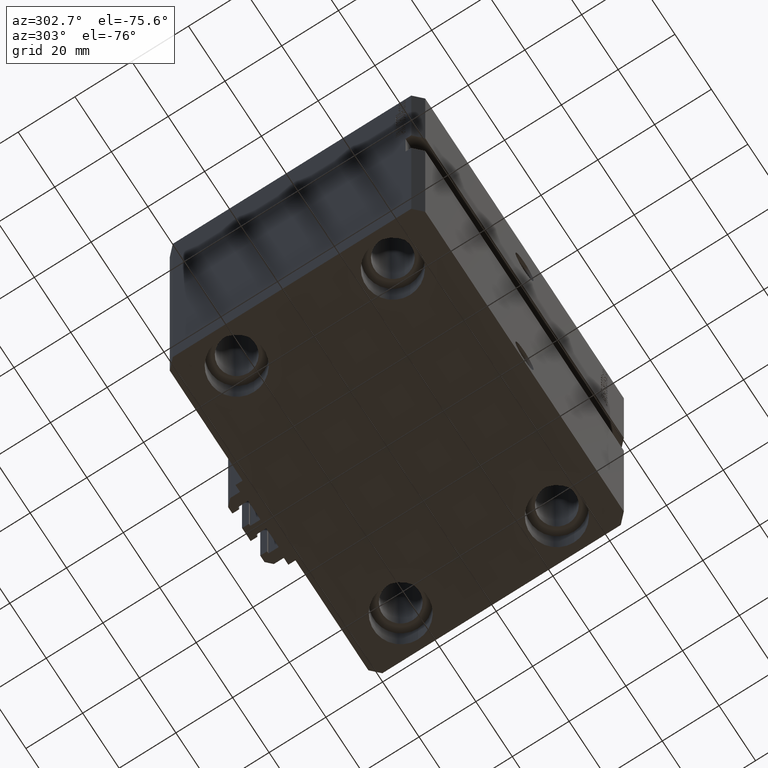
[diagram: clean part render]
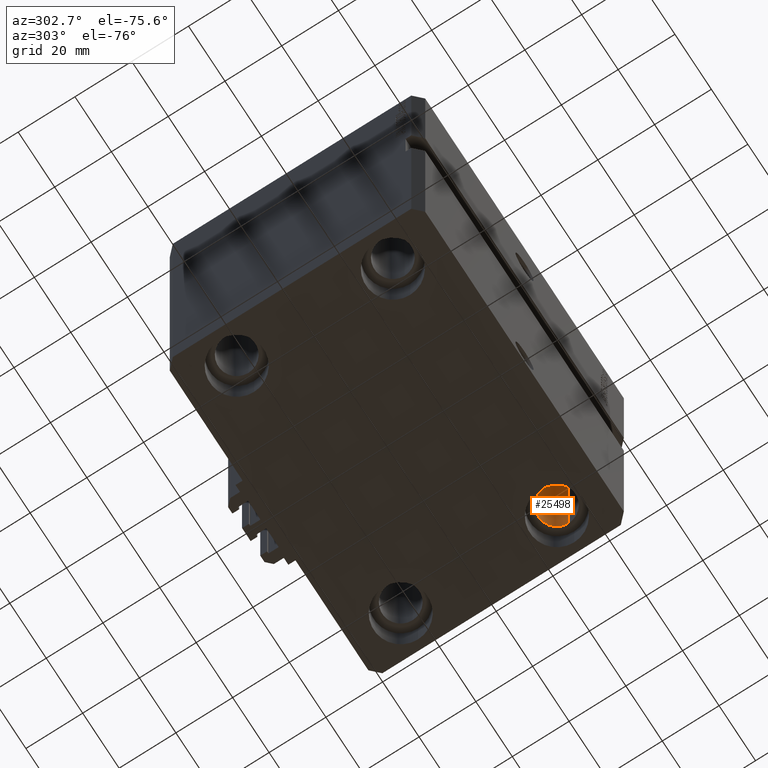
[diagram: same view with one face highlighted and labeled with its STEP entity id]
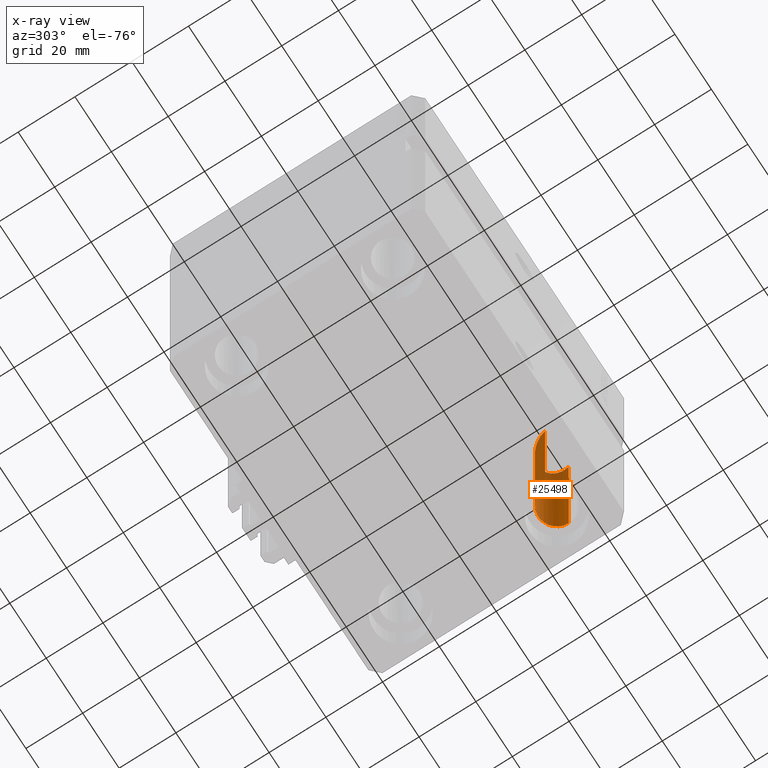
[diagram: x-ray of the same camera — body ghosted, the highlighted face saturated]
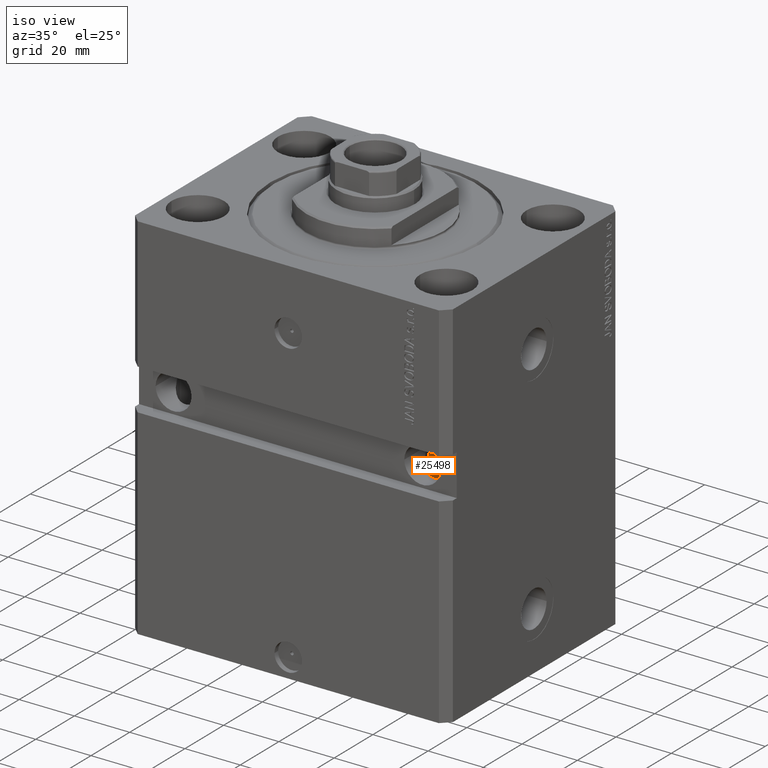
[diagram: same view with one face highlighted and labeled with its STEP entity id]
A machine part, auxiliary view. The second image highlights one B-rep face of the part: STEP entity #25498.
The next image is the same camera in x-ray: the body ghosted, the highlighted face saturated — about 38% of this face is hidden behind the body in this view.
A second angle (iso view) of the same face is appended — the face is thin or edge-on in the first view.
In plain terms, the highlighted cylindrical surface (edge-blend (fillet) strip) has radius 6.5 mm, axis along (0, 0, 1).
Its self-contained STEP definition (entity closure, byte-faithful):
#527 = ORIENTED_EDGE ( 'NONE', *, *, #9790, .T. ) ;
#996 = DIRECTION ( 'NONE',  ( 1.000000000000000000, 0.000000000000000000, 0.000000000000000000 ) ) ;
#1671 = EDGE_CURVE ( 'NONE', #44724, #28755, #32562, .T. ) ;
#2632 = DIRECTION ( 'NONE',  ( 0.000000000000000000, 0.000000000000000000, -1.000000000000000000 ) ) ;
#7295 = EDGE_CURVE ( 'NONE', #29676, #42171, #40015, .T. ) ;
#9432 = CARTESIAN_POINT ( 'NONE',  ( 38.50000000000000711, -14.49999999999999822, -67.99999999999998579 ) ) ;
#9433 = VECTOR ( 'NONE', #40261, 1000.000000000000000 ) ;
#9790 = EDGE_CURVE ( 'NONE', #42171, #44724, #44450, .T. ) ;
#11235 = ORIENTED_EDGE ( 'NONE', *, *, #1671, .T. ) ;
#13300 = VECTOR ( 'NONE', #26242, 1000.000000000000000 ) ;
#17996 = AXIS2_PLACEMENT_3D ( 'NONE', #31672, #2632, #31915 ) ;
#18569 = CARTESIAN_POINT ( 'NONE',  ( 51.50000000000000000, -27.49999999999999645, -135.0000000000000000 ) ) ;
#23376 = CYLINDRICAL_SURFACE ( 'NONE', #43677, 6.499999999999999112 ) ;
#23956 = CARTESIAN_POINT ( 'NONE',  ( 51.50000000000000711, -14.49999999999999822, -67.99999999999998579 ) ) ;
#24977 = CARTESIAN_POINT ( 'NONE',  ( 38.50000000000000000, -27.49999999999999645, -122.0000000000000142 ) ) ;
#25498 = ADVANCED_FACE ( 'NONE', ( #34238 ), #23376, .F. ) ;
#26242 = DIRECTION ( 'NONE',  ( -0.000000000000000000, -0.000000000000000000, 1.000000000000000000 ) ) ;
#26919 = CARTESIAN_POINT ( 'NONE',  ( 51.50000000000000000, -27.49999999999999645, -122.0000000000000142 ) ) ;
#27317 = DIRECTION ( 'NONE',  ( -0.000000000000000000, -0.000000000000000000, 1.000000000000000000 ) ) ;
#27903 = CARTESIAN_POINT ( 'NONE',  ( 38.50000000000000711, -27.49999999999999645, -54.99999999999999289 ) ) ;
#28755 = VERTEX_POINT ( 'NONE', #43833 ) ;
#29676 = VERTEX_POINT ( 'NONE', #24977 ) ;
#30523 = CARTESIAN_POINT ( 'NONE',  ( 45.00000000000000000, -27.49999999999999645, -135.0000000000000000 ) ) ;
#30840 = ORIENTED_EDGE ( 'NONE', *, *, #7295, .T. ) ;
#31672 = CARTESIAN_POINT ( 'NONE',  ( 45.00000000000000000, -27.49999999999999645, -122.0000000000000142 ) ) ;
#31915 = DIRECTION ( 'NONE',  ( -1.000000000000000000, 0.000000000000000000, 0.000000000000000000 ) ) ;
#32562 =( BOUNDED_CURVE ( )  B_SPLINE_CURVE ( 3, ( #46857, #23956, #9432, #27903 ),
 .UNSPECIFIED., .F., .T. ) 
 B_SPLINE_CURVE_WITH_KNOTS ( ( 4, 4 ),
 ( 1.570796326794896558, 4.712388980384689674 ),
 .UNSPECIFIED. ) 
 CURVE ( )  GEOMETRIC_REPRESENTATION_ITEM ( )  RATIONAL_B_SPLINE_CURVE ( ( 1.000000000000000000, 0.3333333333333333703, 0.3333333333333333703, 1.000000000000000000 ) ) 
 REPRESENTATION_ITEM ( '' )  );
#33878 = CARTESIAN_POINT ( 'NONE',  ( 38.50000000000000000, -27.49999999999999645, -135.0000000000000000 ) ) ;
#34238 = FACE_OUTER_BOUND ( 'NONE', #46451, .T. ) ;
#34534 = EDGE_CURVE ( 'NONE', #29676, #28755, #45448, .T. ) ;
#36970 = ORIENTED_EDGE ( 'NONE', *, *, #34534, .F. ) ;
#40015 = CIRCLE ( 'NONE', #17996, 6.499999999999999112 ) ;
#40261 = DIRECTION ( 'NONE',  ( -0.000000000000000000, -0.000000000000000000, 1.000000000000000000 ) ) ;
#42171 = VERTEX_POINT ( 'NONE', #26919 ) ;
#43677 = AXIS2_PLACEMENT_3D ( 'NONE', #30523, #27317, #996 ) ;
#43833 = CARTESIAN_POINT ( 'NONE',  ( 38.50000000000000711, -27.49999999999999645, -54.99999999999999289 ) ) ;
#44450 = LINE ( 'NONE', #18569, #9433 ) ;
#44724 = VERTEX_POINT ( 'NONE', #48122 ) ;
#45448 = LINE ( 'NONE', #33878, #13300 ) ;
#46451 = EDGE_LOOP ( 'NONE', ( #36970, #30840, #527, #11235 ) ) ;
#46857 = CARTESIAN_POINT ( 'NONE',  ( 51.50000000000000711, -27.49999999999999645, -54.99999999999999289 ) ) ;
#48122 = CARTESIAN_POINT ( 'NONE',  ( 51.50000000000000711, -27.49999999999999645, -54.99999999999999289 ) ) ;